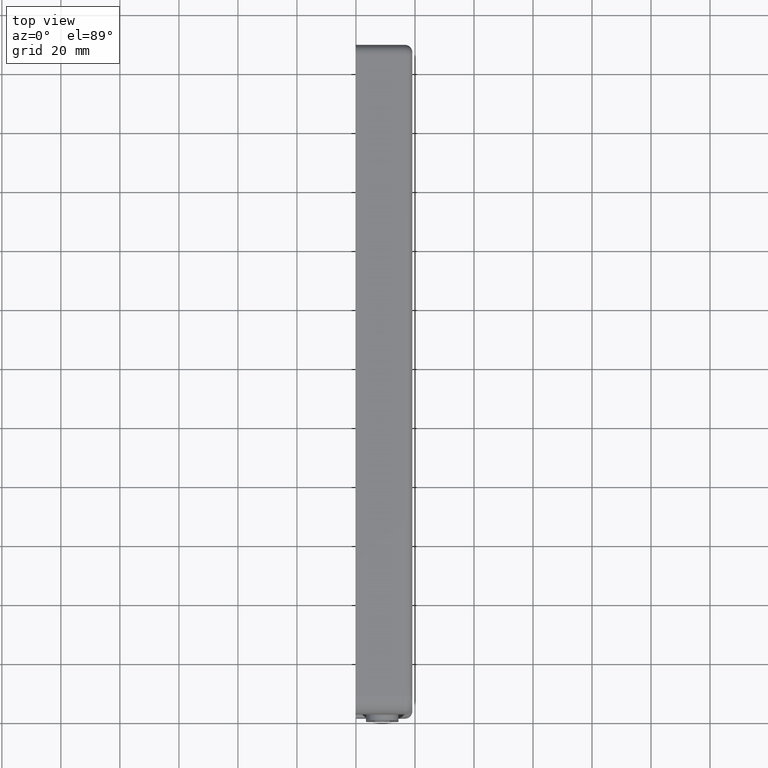
[diagram: clean part render]
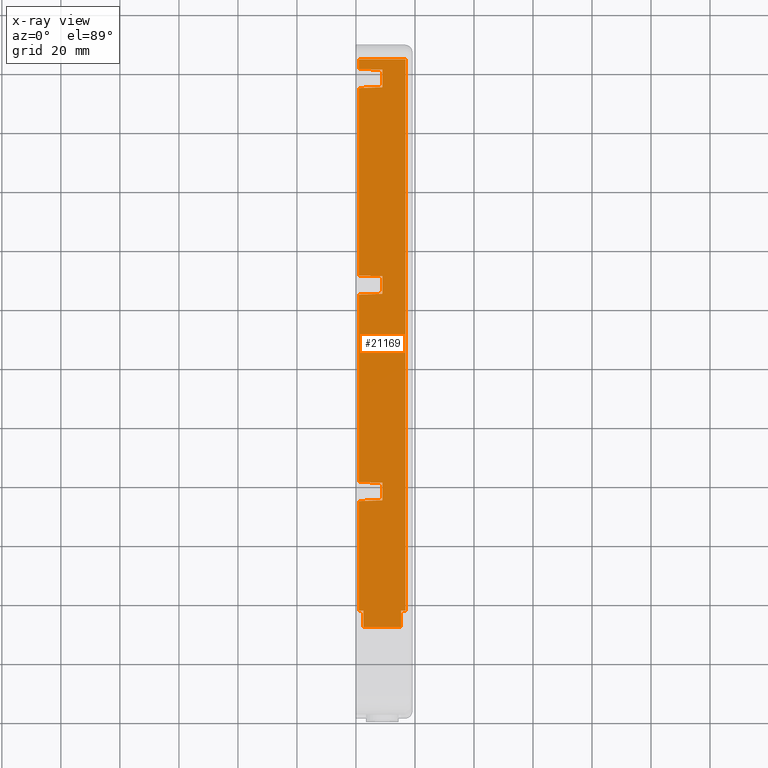
[diagram: x-ray — body ghosted, one internal face saturated and labeled with its STEP entity id]
A machine part, top view, then the same camera in x-ray: the body is ghosted and one INTERNAL B-rep face — a face not visible from any outside direction — is saturated and labeled: STEP entity #21169.
In plain terms, the highlighted planar face has unit normal (0, 0, -1).
Its self-contained STEP definition (entity closure, byte-faithful):
#25 = LINE ( 'NONE', #52493, #62128 ) ;
#882 = ORIENTED_EDGE ( 'NONE', *, *, #1167, .F. ) ;
#1004 = CARTESIAN_POINT ( 'NONE',  ( -32.77910153441688800, 80.70999999995935100, -5.199999999999971800 ) ) ;
#1118 = DIRECTION ( 'NONE',  ( 0.03489949670250674900, 0.0000000000000000000, -0.9993908270190954300 ) ) ;
#1167 = EDGE_CURVE ( 'NONE', #63239, #30743, #25, .T. ) ;
#2027 = ORIENTED_EDGE ( 'NONE', *, *, #45415, .F. ) ;
#3011 = EDGE_CURVE ( 'NONE', #17727, #47888, #19322, .T. ) ;
#4576 = DIRECTION ( 'NONE',  ( 0.0000000000000000000, 0.0000000000000000000, 1.000000000000000000 ) ) ;
#4649 = VECTOR ( 'NONE', #49022, 1000.000000000000000 ) ;
#5508 = DIRECTION ( 'NONE',  ( 0.0000000000000000000, 0.0000000000000000000, -1.000000000000000000 ) ) ;
#5979 = VECTOR ( 'NONE', #46628, 1000.000000000000000 ) ;
#6337 = DIRECTION ( 'NONE',  ( 0.0000000000000000000, 0.0000000000000000000, -1.000000000000000000 ) ) ;
#6430 = EDGE_CURVE ( 'NONE', #69033, #55044, #70536, .T. ) ;
#6559 = EDGE_CURVE ( 'NONE', #18539, #69033, #68760, .T. ) ;
#6642 = VECTOR ( 'NONE', #70814, 1000.000000000000100 ) ;
#6873 = CARTESIAN_POINT ( 'NONE',  ( 118.4799999999998500, 80.70999999995932200, 2.700000000016650900 ) ) ;
#7525 = ORIENTED_EDGE ( 'NONE', *, *, #46113, .F. ) ;
#7855 = LINE ( 'NONE', #63345, #19421 ) ;
#8332 = VECTOR ( 'NONE', #61505, 1000.000000000000000 ) ;
#8540 = CARTESIAN_POINT ( 'NONE',  ( -25.06513322662085100, 80.70999999995935100, -5.199999999999971800 ) ) ;
#9620 = CARTESIAN_POINT ( 'NONE',  ( 118.4798234865120900, 80.70999999995933600, -13.09999999998336200 ) ) ;
#9852 = CARTESIAN_POINT ( 'NONE',  ( -73.95802688559518900, 80.70999999995933600, 1.200000000016650900 ) ) ;
#10325 = LINE ( 'NONE', #36903, #68890 ) ;
#10535 = EDGE_CURVE ( 'NONE', #30326, #63191, #66644, .T. ) ;
#11449 = EDGE_CURVE ( 'NONE', #55044, #35524, #55932, .T. ) ;
#11642 = EDGE_CURVE ( 'NONE', #63191, #37748, #60313, .T. ) ;
#12060 = DIRECTION ( 'NONE',  ( 1.867810654084669300E-016, 0.0000000000000000000, 1.000000000000000000 ) ) ;
#12204 = LINE ( 'NONE', #56122, #68961 ) ;
#12277 = VERTEX_POINT ( 'NONE', #66932 ) ;
#12413 = DIRECTION ( 'NONE',  ( 1.000000000000000000, 0.0000000000000000000, 0.0000000000000000000 ) ) ;
#12687 = CARTESIAN_POINT ( 'NONE',  ( 118.4799999999996200, 80.70999999995935100, -23.29999999999997200 ) ) ;
#14767 = VECTOR ( 'NONE', #12060, 1000.000000000000000 ) ;
#15064 = EDGE_CURVE ( 'NONE', #34670, #12277, #12204, .T. ) ;
#15591 = DIRECTION ( 'NONE',  ( 0.03489949670250856000, 0.0000000000000000000, -0.9993908270190954300 ) ) ;
#15712 = ORIENTED_EDGE ( 'NONE', *, *, #26440, .F. ) ;
#15804 = EDGE_CURVE ( 'NONE', #17727, #59861, #10325, .T. ) ;
#16136 = EDGE_CURVE ( 'NONE', #42566, #42111, #43119, .T. ) ;
#16465 = DIRECTION ( 'NONE',  ( 0.03489949670249810300, 0.0000000000000000000, 0.9993908270190957600 ) ) ;
#16880 = DIRECTION ( 'NONE',  ( 1.000000000000000000, 0.0000000000000000000, 0.0000000000000000000 ) ) ;
#17727 = VERTEX_POINT ( 'NONE', #9852 ) ;
#18380 = CARTESIAN_POINT ( 'NONE',  ( -31.26894392119846000, 80.70999999995935100, -13.09999999998333000 ) ) ;
#18539 = VERTEX_POINT ( 'NONE', #52622 ) ;
#18558 = DIRECTION ( 'NONE',  ( -1.000000000000000000, 0.0000000000000000000, 0.0000000000000000000 ) ) ;
#19322 = LINE ( 'NONE', #33754, #32591 ) ;
#19421 = VECTOR ( 'NONE', #1118, 1000.000000000000100 ) ;
#19653 = ORIENTED_EDGE ( 'NONE', *, *, #16136, .T. ) ;
#20226 = CARTESIAN_POINT ( 'NONE',  ( 114.9348667733791700, 80.70999999995935100, -5.199999999999971800 ) ) ;
#20345 = VECTOR ( 'NONE', #68654, 1000.000000000000000 ) ;
#20617 = CARTESIAN_POINT ( 'NONE',  ( 39.00693015778576000, 80.70999999995935100, -5.199999999999972600 ) ) ;
#21056 = CARTESIAN_POINT ( 'NONE',  ( -68.45802688559518900, 80.70999999995935100, -13.09999999998332700 ) ) ;
#21169 = ADVANCED_FACE ( 'NONE', ( #43362 ), #40077, .F. ) ;
#21214 = CARTESIAN_POINT ( 'NONE',  ( 44.93486677337917700, 80.70999999995935100, -5.199999999999971800 ) ) ;
#22144 = LINE ( 'NONE', #62962, #20345 ) ;
#22343 = VECTOR ( 'NONE', #16880, 1000.000000000000000 ) ;
#24254 = CARTESIAN_POINT ( 'NONE',  ( -32.77910153441688800, 80.70999999995935100, -13.09999999998334300 ) ) ;
#26343 = VECTOR ( 'NONE', #69100, 1000.000000000000000 ) ;
#26440 = EDGE_CURVE ( 'NONE', #42876, #63239, #66296, .T. ) ;
#26623 = ORIENTED_EDGE ( 'NONE', *, *, #3011, .F. ) ;
#27047 = VECTOR ( 'NONE', #69614, 1000.000000000000000 ) ;
#29011 = ORIENTED_EDGE ( 'NONE', *, *, #50979, .T. ) ;
#29706 = ORIENTED_EDGE ( 'NONE', *, *, #15064, .F. ) ;
#30176 = VECTOR ( 'NONE', #67966, 1000.000000000000000 ) ;
#30318 = ORIENTED_EDGE ( 'NONE', *, *, #41428, .F. ) ;
#30326 = VERTEX_POINT ( 'NONE', #21214 ) ;
#30743 = VERTEX_POINT ( 'NONE', #38744 ) ;
#30912 = ORIENTED_EDGE ( 'NONE', *, *, #11642, .F. ) ;
#31307 = DIRECTION ( 'NONE',  ( 0.03489949670249804100, 0.0000000000000000000, 0.9993908270190957600 ) ) ;
#32459 = CARTESIAN_POINT ( 'NONE',  ( -68.45802688559518900, 80.70999999995935100, 1.200000000016651300 ) ) ;
#32591 = VECTOR ( 'NONE', #5508, 1000.000000000000000 ) ;
#33676 = CARTESIAN_POINT ( 'NONE',  ( 115.2107408523634300, 80.70999999995935100, -13.09999999998336200 ) ) ;
#33750 = CARTESIAN_POINT ( 'NONE',  ( -68.45802688559518900, 80.70999999995935100, -11.59999999998332500 ) ) ;
#33754 = CARTESIAN_POINT ( 'NONE',  ( -73.95802688559518900, 80.70999999995935100, -23.29999999999997200 ) ) ;
#33875 = ORIENTED_EDGE ( 'NONE', *, *, #69579, .F. ) ;
#34250 = AXIS2_PLACEMENT_3D ( 'NONE', #34592, #40307, #6337 ) ;
#34592 = CARTESIAN_POINT ( 'NONE',  ( -32.77910153441688800, 80.70999999995935100, -23.29999999999997200 ) ) ;
#34670 = VERTEX_POINT ( 'NONE', #18380 ) ;
#35524 = VERTEX_POINT ( 'NONE', #20617 ) ;
#36505 = VECTOR ( 'NONE', #15591, 1000.000000000000000 ) ;
#36726 = LINE ( 'NONE', #47561, #46462 ) ;
#36903 = CARTESIAN_POINT ( 'NONE',  ( -4.080776388304271100E-046, 80.70999999995932200, 1.200000000016651300 ) ) ;
#37405 = LINE ( 'NONE', #45109, #22343 ) ;
#37748 = VERTEX_POINT ( 'NONE', #57103 ) ;
#38133 = LINE ( 'NONE', #42557, #66513 ) ;
#38533 = LINE ( 'NONE', #67189, #8332 ) ;
#38744 = CARTESIAN_POINT ( 'NONE',  ( -68.45802688559518900, 80.70999999995933600, 2.700000000016650900 ) ) ;
#39860 = EDGE_CURVE ( 'NONE', #51202, #49070, #7855, .T. ) ;
#40008 = CARTESIAN_POINT ( 'NONE',  ( 38.73105607880155100, 80.70999999995935100, -13.09999999998334500 ) ) ;
#40077 = PLANE ( 'NONE',  #34250 ) ;
#40307 = DIRECTION ( 'NONE',  ( 0.0000000000000000000, -1.000000000000000000, 0.0000000000000000000 ) ) ;
#41428 = EDGE_CURVE ( 'NONE', #12277, #18539, #71701, .T. ) ;
#42096 = CARTESIAN_POINT ( 'NONE',  ( 118.4799117432559100, 80.70999999921751600, -5.199999999997214900 ) ) ;
#42111 = VERTEX_POINT ( 'NONE', #33750 ) ;
#42557 = CARTESIAN_POINT ( 'NONE',  ( 108.7310560788015600, 80.70999999995935100, -13.09999999998336200 ) ) ;
#42566 = VERTEX_POINT ( 'NONE', #21056 ) ;
#42719 = CARTESIAN_POINT ( 'NONE',  ( 38.73105607880155100, 80.70999999995935100, -13.09999999998335000 ) ) ;
#42876 = VERTEX_POINT ( 'NONE', #42096 ) ;
#43119 = LINE ( 'NONE', #46016, #14767 ) ;
#43362 = FACE_OUTER_BOUND ( 'NONE', #48226, .T. ) ;
#44087 = CARTESIAN_POINT ( 'NONE',  ( 44.93486677337915600, 80.70999999995935100, -5.199999999999971800 ) ) ;
#45014 = LINE ( 'NONE', #63404, #26343 ) ;
#45109 = CARTESIAN_POINT ( 'NONE',  ( -32.77910153441688800, 80.70999999995935100, -13.09999999998336400 ) ) ;
#45220 = EDGE_CURVE ( 'NONE', #42111, #47888, #36726, .T. ) ;
#45415 = EDGE_CURVE ( 'NONE', #35524, #30326, #51673, .T. ) ;
#46016 = CARTESIAN_POINT ( 'NONE',  ( -68.45802688559518900, 80.70999999995935100, -11.59999999998332500 ) ) ;
#46072 = CARTESIAN_POINT ( 'NONE',  ( 45.21074085236344300, 80.70999999995935100, -13.09999999998334800 ) ) ;
#46113 = EDGE_CURVE ( 'NONE', #50693, #42876, #71102, .T. ) ;
#46462 = VECTOR ( 'NONE', #52801, 1000.000000000000000 ) ;
#46511 = ORIENTED_EDGE ( 'NONE', *, *, #61827, .F. ) ;
#46628 = DIRECTION ( 'NONE',  ( 0.0000000000000000000, 0.0000000000000000000, 1.000000000000000000 ) ) ;
#47561 = CARTESIAN_POINT ( 'NONE',  ( 4.669526635211675600E-016, 80.70999999995935100, -11.59999999998332300 ) ) ;
#47574 = VERTEX_POINT ( 'NONE', #61406 ) ;
#47888 = VERTEX_POINT ( 'NONE', #50923 ) ;
#47997 = ORIENTED_EDGE ( 'NONE', *, *, #67082, .F. ) ;
#48218 = DIRECTION ( 'NONE',  ( 0.03489949670249974100, 0.0000000000000000000, 0.9993908270190956500 ) ) ;
#48226 = EDGE_LOOP ( 'NONE', ( #60569, #58557, #30318, #29706, #55817, #19653, #60618, #26623, #61395, #29011, #882, #15712, #7525, #33875, #73563, #47997, #46511, #30912, #54185, #2027, #56754 ) ) ;
#48266 = DIRECTION ( 'NONE',  ( 1.000000000000000000, 0.0000000000000000000, 0.0000000000000000000 ) ) ;
#49022 = DIRECTION ( 'NONE',  ( 1.000000000000000000, 0.0000000000000000000, 0.0000000000000000000 ) ) ;
#49070 = VERTEX_POINT ( 'NONE', #33676 ) ;
#50693 = VERTEX_POINT ( 'NONE', #9620 ) ;
#50923 = CARTESIAN_POINT ( 'NONE',  ( -73.95802688559518900, 80.70999999995935100, -11.59999999998332300 ) ) ;
#50979 = EDGE_CURVE ( 'NONE', #59861, #30743, #45014, .T. ) ;
#51202 = VERTEX_POINT ( 'NONE', #20226 ) ;
#51673 = LINE ( 'NONE', #54741, #4649 ) ;
#52493 = CARTESIAN_POINT ( 'NONE',  ( -4.080776388304271100E-046, 80.70999999995932200, 2.700000000016650900 ) ) ;
#52622 = CARTESIAN_POINT ( 'NONE',  ( -25.06513322662083400, 80.70999999995935100, -5.199999999999978000 ) ) ;
#52801 = DIRECTION ( 'NONE',  ( -1.000000000000000000, -0.0000000000000000000, -0.0000000000000000000 ) ) ;
#54185 = ORIENTED_EDGE ( 'NONE', *, *, #10535, .F. ) ;
#54741 = CARTESIAN_POINT ( 'NONE',  ( -32.77910153441688800, 80.70999999995935100, -5.199999999999971800 ) ) ;
#54830 = VECTOR ( 'NONE', #12413, 1000.000000000000000 ) ;
#55044 = VERTEX_POINT ( 'NONE', #40008 ) ;
#55817 = ORIENTED_EDGE ( 'NONE', *, *, #72715, .F. ) ;
#55932 = LINE ( 'NONE', #42719, #71011 ) ;
#56031 = VECTOR ( 'NONE', #4576, 1000.000000000000000 ) ;
#56122 = CARTESIAN_POINT ( 'NONE',  ( -31.26894392119846000, 80.70999999995935100, -13.09999999998334100 ) ) ;
#56754 = ORIENTED_EDGE ( 'NONE', *, *, #11449, .F. ) ;
#57103 = CARTESIAN_POINT ( 'NONE',  ( 108.7310560788015600, 80.70999999995935100, -13.09999999998335300 ) ) ;
#58557 = ORIENTED_EDGE ( 'NONE', *, *, #6559, .F. ) ;
#59861 = VERTEX_POINT ( 'NONE', #32459 ) ;
#60313 = LINE ( 'NONE', #62272, #30176 ) ;
#60569 = ORIENTED_EDGE ( 'NONE', *, *, #6430, .F. ) ;
#60618 = ORIENTED_EDGE ( 'NONE', *, *, #45220, .T. ) ;
#61395 = ORIENTED_EDGE ( 'NONE', *, *, #15804, .T. ) ;
#61406 = CARTESIAN_POINT ( 'NONE',  ( 109.0069301577857900, 80.70999999995936500, -5.199999999999972600 ) ) ;
#61505 = DIRECTION ( 'NONE',  ( 1.000000000000000000, 0.0000000000000000000, 0.0000000000000000000 ) ) ;
#61827 = EDGE_CURVE ( 'NONE', #37748, #47574, #38133, .T. ) ;
#62128 = VECTOR ( 'NONE', #18558, 1000.000000000000000 ) ;
#62272 = CARTESIAN_POINT ( 'NONE',  ( -32.77910153441688800, 80.70999999995935100, -13.09999999998335000 ) ) ;
#62962 = CARTESIAN_POINT ( 'NONE',  ( -32.77910153441688800, 80.70999999995935100, -13.09999999998332700 ) ) ;
#63191 = VERTEX_POINT ( 'NONE', #46072 ) ;
#63239 = VERTEX_POINT ( 'NONE', #6873 ) ;
#63345 = CARTESIAN_POINT ( 'NONE',  ( 114.9348667733791600, 80.70999999995935100, -5.199999999999971800 ) ) ;
#63404 = CARTESIAN_POINT ( 'NONE',  ( -68.45802688559518900, 80.70999999995935100, -11.59999999998332500 ) ) ;
#66296 = LINE ( 'NONE', #12687, #5979 ) ;
#66513 = VECTOR ( 'NONE', #48218, 1000.000000000000100 ) ;
#66624 = CARTESIAN_POINT ( 'NONE',  ( -24.78925914763657800, 80.70999999995935100, -13.09999999998334100 ) ) ;
#66644 = LINE ( 'NONE', #44087, #36505 ) ;
#66932 = CARTESIAN_POINT ( 'NONE',  ( -30.99306984221424300, 80.70999999995936500, -5.199999999999972600 ) ) ;
#67082 = EDGE_CURVE ( 'NONE', #47574, #51202, #38533, .T. ) ;
#67189 = CARTESIAN_POINT ( 'NONE',  ( -32.77910153441688800, 80.70999999995935100, -5.199999999999971800 ) ) ;
#67966 = DIRECTION ( 'NONE',  ( 1.000000000000000000, 0.0000000000000000000, 0.0000000000000000000 ) ) ;
#68654 = DIRECTION ( 'NONE',  ( 1.000000000000000000, 0.0000000000000000000, 0.0000000000000000000 ) ) ;
#68760 = LINE ( 'NONE', #8540, #6642 ) ;
#68890 = VECTOR ( 'NONE', #48266, 1000.000000000000000 ) ;
#68961 = VECTOR ( 'NONE', #16465, 1000.000000000000100 ) ;
#69033 = VERTEX_POINT ( 'NONE', #66624 ) ;
#69100 = DIRECTION ( 'NONE',  ( 1.867810654084669300E-016, 0.0000000000000000000, 1.000000000000000000 ) ) ;
#69579 = EDGE_CURVE ( 'NONE', #49070, #50693, #37405, .T. ) ;
#69614 = DIRECTION ( 'NONE',  ( 1.000000000000000000, 0.0000000000000000000, 0.0000000000000000000 ) ) ;
#70536 = LINE ( 'NONE', #24254, #27047 ) ;
#70814 = DIRECTION ( 'NONE',  ( 0.03489949670250730400, 0.0000000000000000000, -0.9993908270190954300 ) ) ;
#71011 = VECTOR ( 'NONE', #31307, 1000.000000000000100 ) ;
#71102 = LINE ( 'NONE', #72500, #56031 ) ;
#71701 = LINE ( 'NONE', #1004, #54830 ) ;
#72500 = CARTESIAN_POINT ( 'NONE',  ( 118.4798234865120700, 80.70999999995935100, -23.29999999999997200 ) ) ;
#72715 = EDGE_CURVE ( 'NONE', #42566, #34670, #22144, .T. ) ;
#73563 = ORIENTED_EDGE ( 'NONE', *, *, #39860, .F. ) ;